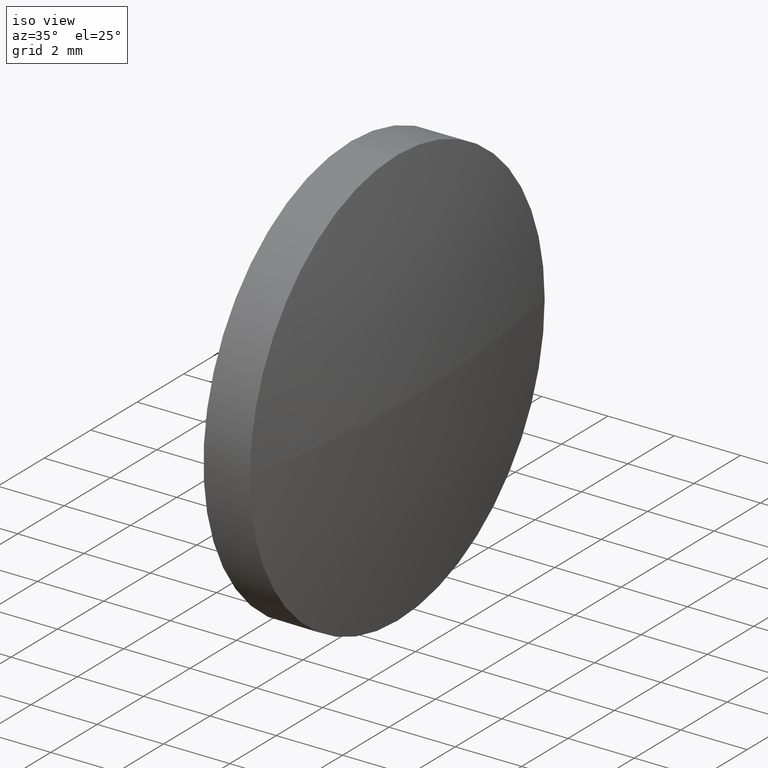
[diagram: clean part render]
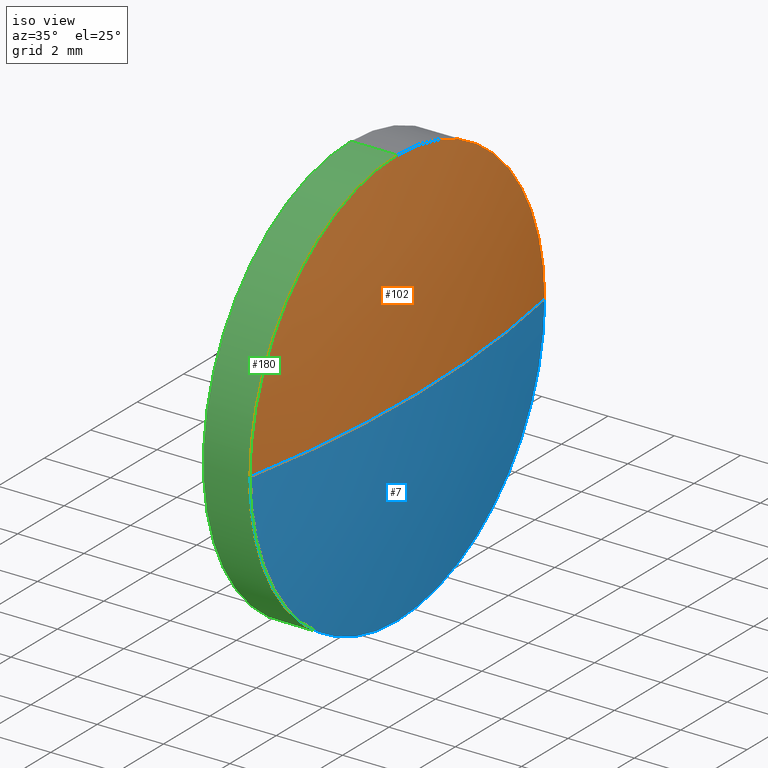
[diagram: same view with three faces highlighted in distinct colors, each labeled with its STEP entity id]
A machine part, iso view with three faces highlighted in distinct colors.
Their STEP definitions:

[orange] entity #102 — the highlighted spherical surface has radius 33.9021 mm.
#1 = VERTEX_POINT ( 'NONE', #58 ) ;
#13 = CARTESIAN_POINT ( 'NONE',  ( 163.6347767246686500, 18.73237217798910600, 0.0000000000000000000 ) ) ;
#23 = AXIS2_PLACEMENT_3D ( 'NONE', #46, #97, #61 ) ;
#26 = ORIENTED_EDGE ( 'NONE', *, *, #179, .F. ) ;
#27 = CARTESIAN_POINT ( 'NONE',  ( 163.6347767246686500, 18.73237217798910600, 0.0000000000000000000 ) ) ;
#29 = DIRECTION ( 'NONE',  ( 0.0000000000000000000, 1.000000000000000000, 0.0000000000000000000 ) ) ;
#30 = CARTESIAN_POINT ( 'NONE',  ( 196.9368600580019700, 12.38237217798907800, -7.776507174585727700E-016 ) ) ;
#36 = CIRCLE ( 'NONE', #23, 6.350000000000001400 ) ;
#37 = AXIS2_PLACEMENT_3D ( 'NONE', #13, #157, #29 ) ;
#46 = CARTESIAN_POINT ( 'NONE',  ( 196.9368600580019700, 18.73237217798914900, 0.0000000000000000000 ) ) ;
#48 = CIRCLE ( 'NONE', #66, 33.90208333333330200 ) ;
#53 = EDGE_LOOP ( 'NONE', ( #78, #149, #26, #104 ) ) ;
#56 = SPHERICAL_SURFACE ( 'NONE', #37, 33.90208333333330200 ) ;
#58 = CARTESIAN_POINT ( 'NONE',  ( 196.9368600580019700, 18.73237217798914900, 6.350000000000001400 ) ) ;
#61 = DIRECTION ( 'NONE',  ( 0.0000000000000000000, 0.0000000000000000000, 1.000000000000000000 ) ) ;
#62 = EDGE_CURVE ( 'NONE', #87, #1, #75, .T. ) ;
#66 = AXIS2_PLACEMENT_3D ( 'NONE', #27, #185, #106 ) ;
#74 = DIRECTION ( 'NONE',  ( 0.0000000000000000000, 0.0000000000000000000, 1.000000000000000000 ) ) ;
#75 = CIRCLE ( 'NONE', #100, 6.350000000000001400 ) ;
#78 = ORIENTED_EDGE ( 'NONE', *, *, #136, .F. ) ;
#79 = AXIS2_PLACEMENT_3D ( 'NONE', #111, #163, #86 ) ;
#86 = DIRECTION ( 'NONE',  ( 0.0000000000000000000, 1.000000000000000000, 1.224646799147353200E-016 ) ) ;
#87 = VERTEX_POINT ( 'NONE', #30 ) ;
#90 = CIRCLE ( 'NONE', #79, 33.90208333333330200 ) ;
#97 = DIRECTION ( 'NONE',  ( -1.000000000000000000, -0.0000000000000000000, -0.0000000000000000000 ) ) ;
#99 = CARTESIAN_POINT ( 'NONE',  ( 197.5368600580019600, 18.73237217798910900, 0.0000000000000000000 ) ) ;
#100 = AXIS2_PLACEMENT_3D ( 'NONE', #108, #121, #74 ) ;
#102 = ADVANCED_FACE ( 'NONE', ( #164 ), #56, .T. ) ;
#104 = ORIENTED_EDGE ( 'NONE', *, *, #62, .F. ) ;
#106 = DIRECTION ( 'NONE',  ( 1.000000000000000000, 0.0000000000000000000, 0.0000000000000000000 ) ) ;
#108 = CARTESIAN_POINT ( 'NONE',  ( 196.9368600580019700, 18.73237217798914900, 0.0000000000000000000 ) ) ;
#111 = CARTESIAN_POINT ( 'NONE',  ( 163.6347767246686500, 18.73237217798910600, 0.0000000000000000000 ) ) ;
#121 = DIRECTION ( 'NONE',  ( -1.000000000000000000, -0.0000000000000000000, -0.0000000000000000000 ) ) ;
#124 = VERTEX_POINT ( 'NONE', #125 ) ;
#125 = CARTESIAN_POINT ( 'NONE',  ( 196.9368600580019700, 25.08237217798917800, 0.0000000000000000000 ) ) ;
#136 = EDGE_CURVE ( 'NONE', #155, #87, #90, .T. ) ;
#149 = ORIENTED_EDGE ( 'NONE', *, *, #172, .T. ) ;
#155 = VERTEX_POINT ( 'NONE', #99 ) ;
#157 = DIRECTION ( 'NONE',  ( -0.0000000000000000000, 0.0000000000000000000, -1.000000000000000000 ) ) ;
#163 = DIRECTION ( 'NONE',  ( 0.0000000000000000000, 1.224646799147353200E-016, -1.000000000000000000 ) ) ;
#164 = FACE_OUTER_BOUND ( 'NONE', #53, .T. ) ;
#172 = EDGE_CURVE ( 'NONE', #155, #124, #48, .T. ) ;
#179 = EDGE_CURVE ( 'NONE', #1, #124, #36, .T. ) ;
#185 = DIRECTION ( 'NONE',  ( -0.0000000000000000000, 0.0000000000000000000, 1.000000000000000000 ) ) ;

[blue] entity #7 — the highlighted spherical surface has radius 33.9021 mm.
#6 = ORIENTED_EDGE ( 'NONE', *, *, #122, .F. ) ;
#7 = ADVANCED_FACE ( 'NONE', ( #64 ), #113, .T. ) ;
#12 = CARTESIAN_POINT ( 'NONE',  ( 196.9368600580019700, 18.73237217798914900, -6.350000000000001400 ) ) ;
#14 = DIRECTION ( 'NONE',  ( 0.0000000000000000000, 0.0000000000000000000, 1.000000000000000000 ) ) ;
#20 = CIRCLE ( 'NONE', #50, 6.350000000000001400 ) ;
#22 = EDGE_LOOP ( 'NONE', ( #186, #116, #6, #71 ) ) ;
#24 = DIRECTION ( 'NONE',  ( -0.0000000000000000000, 0.0000000000000000000, -1.000000000000000000 ) ) ;
#27 = CARTESIAN_POINT ( 'NONE',  ( 163.6347767246686500, 18.73237217798910600, 0.0000000000000000000 ) ) ;
#30 = CARTESIAN_POINT ( 'NONE',  ( 196.9368600580019700, 12.38237217798907800, -7.776507174585727700E-016 ) ) ;
#48 = CIRCLE ( 'NONE', #66, 33.90208333333330200 ) ;
#50 = AXIS2_PLACEMENT_3D ( 'NONE', #60, #95, #14 ) ;
#60 = CARTESIAN_POINT ( 'NONE',  ( 196.9368600580019700, 18.73237217798914900, 0.0000000000000000000 ) ) ;
#64 = FACE_OUTER_BOUND ( 'NONE', #22, .T. ) ;
#66 = AXIS2_PLACEMENT_3D ( 'NONE', #27, #185, #106 ) ;
#71 = ORIENTED_EDGE ( 'NONE', *, *, #98, .F. ) ;
#79 = AXIS2_PLACEMENT_3D ( 'NONE', #111, #163, #86 ) ;
#84 = VERTEX_POINT ( 'NONE', #12 ) ;
#86 = DIRECTION ( 'NONE',  ( 0.0000000000000000000, 1.000000000000000000, 1.224646799147353200E-016 ) ) ;
#87 = VERTEX_POINT ( 'NONE', #30 ) ;
#90 = CIRCLE ( 'NONE', #79, 33.90208333333330200 ) ;
#95 = DIRECTION ( 'NONE',  ( -1.000000000000000000, -0.0000000000000000000, -0.0000000000000000000 ) ) ;
#98 = EDGE_CURVE ( 'NONE', #124, #84, #150, .T. ) ;
#99 = CARTESIAN_POINT ( 'NONE',  ( 197.5368600580019600, 18.73237217798910900, 0.0000000000000000000 ) ) ;
#106 = DIRECTION ( 'NONE',  ( 1.000000000000000000, 0.0000000000000000000, 0.0000000000000000000 ) ) ;
#111 = CARTESIAN_POINT ( 'NONE',  ( 163.6347767246686500, 18.73237217798910600, 0.0000000000000000000 ) ) ;
#113 = SPHERICAL_SURFACE ( 'NONE', #168, 33.90208333333330200 ) ;
#116 = ORIENTED_EDGE ( 'NONE', *, *, #136, .T. ) ;
#120 = DIRECTION ( 'NONE',  ( 0.0000000000000000000, 1.000000000000000000, 0.0000000000000000000 ) ) ;
#122 = EDGE_CURVE ( 'NONE', #84, #87, #20, .T. ) ;
#123 = DIRECTION ( 'NONE',  ( -1.000000000000000000, -0.0000000000000000000, -0.0000000000000000000 ) ) ;
#124 = VERTEX_POINT ( 'NONE', #125 ) ;
#125 = CARTESIAN_POINT ( 'NONE',  ( 196.9368600580019700, 25.08237217798917800, 0.0000000000000000000 ) ) ;
#134 = AXIS2_PLACEMENT_3D ( 'NONE', #176, #123, #140 ) ;
#136 = EDGE_CURVE ( 'NONE', #155, #87, #90, .T. ) ;
#140 = DIRECTION ( 'NONE',  ( 0.0000000000000000000, 0.0000000000000000000, 1.000000000000000000 ) ) ;
#150 = CIRCLE ( 'NONE', #134, 6.350000000000001400 ) ;
#155 = VERTEX_POINT ( 'NONE', #99 ) ;
#163 = DIRECTION ( 'NONE',  ( 0.0000000000000000000, 1.224646799147353200E-016, -1.000000000000000000 ) ) ;
#168 = AXIS2_PLACEMENT_3D ( 'NONE', #173, #24, #120 ) ;
#172 = EDGE_CURVE ( 'NONE', #155, #124, #48, .T. ) ;
#173 = CARTESIAN_POINT ( 'NONE',  ( 163.6347767246686500, 18.73237217798910600, 0.0000000000000000000 ) ) ;
#176 = CARTESIAN_POINT ( 'NONE',  ( 196.9368600580019700, 18.73237217798914900, 0.0000000000000000000 ) ) ;
#185 = DIRECTION ( 'NONE',  ( -0.0000000000000000000, 0.0000000000000000000, 1.000000000000000000 ) ) ;
#186 = ORIENTED_EDGE ( 'NONE', *, *, #172, .F. ) ;

[green] entity #180 — the highlighted cylindrical surface (partial cylindrical patch) has radius 6.35 mm, axis along (-1, -0, -0).
#1 = VERTEX_POINT ( 'NONE', #58 ) ;
#8 = EDGE_CURVE ( 'NONE', #84, #160, #141, .T. ) ;
#11 = DIRECTION ( 'NONE',  ( -1.000000000000000000, -0.0000000000000000000, -0.0000000000000000000 ) ) ;
#12 = CARTESIAN_POINT ( 'NONE',  ( 196.9368600580019700, 18.73237217798914900, -6.350000000000001400 ) ) ;
#14 = DIRECTION ( 'NONE',  ( 0.0000000000000000000, 0.0000000000000000000, 1.000000000000000000 ) ) ;
#17 = ORIENTED_EDGE ( 'NONE', *, *, #8, .F. ) ;
#20 = CIRCLE ( 'NONE', #50, 6.350000000000001400 ) ;
#30 = CARTESIAN_POINT ( 'NONE',  ( 196.9368600580019700, 12.38237217798907800, -7.776507174585727700E-016 ) ) ;
#31 = CIRCLE ( 'NONE', #158, 6.350000000000001400 ) ;
#35 = LINE ( 'NONE', #39, #68 ) ;
#39 = CARTESIAN_POINT ( 'NONE',  ( 192.6677510401637500, 18.73237217798914900, 6.350000000000001400 ) ) ;
#40 = EDGE_CURVE ( 'NONE', #1, #59, #35, .T. ) ;
#42 = CARTESIAN_POINT ( 'NONE',  ( 192.6677510401637500, 18.73237217798914900, -6.350000000000001400 ) ) ;
#44 = DIRECTION ( 'NONE',  ( -1.000000000000000000, -0.0000000000000000000, -0.0000000000000000000 ) ) ;
#50 = AXIS2_PLACEMENT_3D ( 'NONE', #60, #95, #14 ) ;
#52 = EDGE_CURVE ( 'NONE', #160, #59, #31, .T. ) ;
#55 = CARTESIAN_POINT ( 'NONE',  ( 195.5368600580019300, 18.73237217798914900, 6.350000000000001400 ) ) ;
#57 = EDGE_LOOP ( 'NONE', ( #17, #183, #119, #110, #103 ) ) ;
#58 = CARTESIAN_POINT ( 'NONE',  ( 196.9368600580019700, 18.73237217798914900, 6.350000000000001400 ) ) ;
#59 = VERTEX_POINT ( 'NONE', #55 ) ;
#60 = CARTESIAN_POINT ( 'NONE',  ( 196.9368600580019700, 18.73237217798914900, 0.0000000000000000000 ) ) ;
#62 = EDGE_CURVE ( 'NONE', #87, #1, #75, .T. ) ;
#68 = VECTOR ( 'NONE', #11, 1000.000000000000000 ) ;
#72 = DIRECTION ( 'NONE',  ( 0.0000000000000000000, 0.0000000000000000000, 1.000000000000000000 ) ) ;
#74 = DIRECTION ( 'NONE',  ( 0.0000000000000000000, 0.0000000000000000000, 1.000000000000000000 ) ) ;
#75 = CIRCLE ( 'NONE', #100, 6.350000000000001400 ) ;
#84 = VERTEX_POINT ( 'NONE', #12 ) ;
#87 = VERTEX_POINT ( 'NONE', #30 ) ;
#95 = DIRECTION ( 'NONE',  ( -1.000000000000000000, -0.0000000000000000000, -0.0000000000000000000 ) ) ;
#100 = AXIS2_PLACEMENT_3D ( 'NONE', #108, #121, #74 ) ;
#103 = ORIENTED_EDGE ( 'NONE', *, *, #52, .F. ) ;
#107 = CARTESIAN_POINT ( 'NONE',  ( 192.6677510401637500, 18.73237217798914900, 0.0000000000000000000 ) ) ;
#108 = CARTESIAN_POINT ( 'NONE',  ( 196.9368600580019700, 18.73237217798914900, 0.0000000000000000000 ) ) ;
#110 = ORIENTED_EDGE ( 'NONE', *, *, #40, .T. ) ;
#119 = ORIENTED_EDGE ( 'NONE', *, *, #62, .T. ) ;
#121 = DIRECTION ( 'NONE',  ( -1.000000000000000000, -0.0000000000000000000, -0.0000000000000000000 ) ) ;
#122 = EDGE_CURVE ( 'NONE', #84, #87, #20, .T. ) ;
#126 = CARTESIAN_POINT ( 'NONE',  ( 195.5368600580019300, 18.73237217798914900, -6.350000000000001400 ) ) ;
#129 = FACE_OUTER_BOUND ( 'NONE', #57, .T. ) ;
#141 = LINE ( 'NONE', #42, #178 ) ;
#146 = CYLINDRICAL_SURFACE ( 'NONE', #165, 6.350000000000001400 ) ;
#158 = AXIS2_PLACEMENT_3D ( 'NONE', #162, #175, #72 ) ;
#159 = DIRECTION ( 'NONE',  ( -1.000000000000000000, -0.0000000000000000000, -0.0000000000000000000 ) ) ;
#160 = VERTEX_POINT ( 'NONE', #126 ) ;
#161 = DIRECTION ( 'NONE',  ( 0.0000000000000000000, 0.0000000000000000000, 1.000000000000000000 ) ) ;
#162 = CARTESIAN_POINT ( 'NONE',  ( 195.5368600580019300, 18.73237217798914900, 0.0000000000000000000 ) ) ;
#165 = AXIS2_PLACEMENT_3D ( 'NONE', #107, #159, #161 ) ;
#175 = DIRECTION ( 'NONE',  ( -1.000000000000000000, -0.0000000000000000000, -0.0000000000000000000 ) ) ;
#178 = VECTOR ( 'NONE', #44, 1000.000000000000000 ) ;
#180 = ADVANCED_FACE ( 'NONE', ( #129 ), #146, .T. ) ;
#183 = ORIENTED_EDGE ( 'NONE', *, *, #122, .T. ) ;